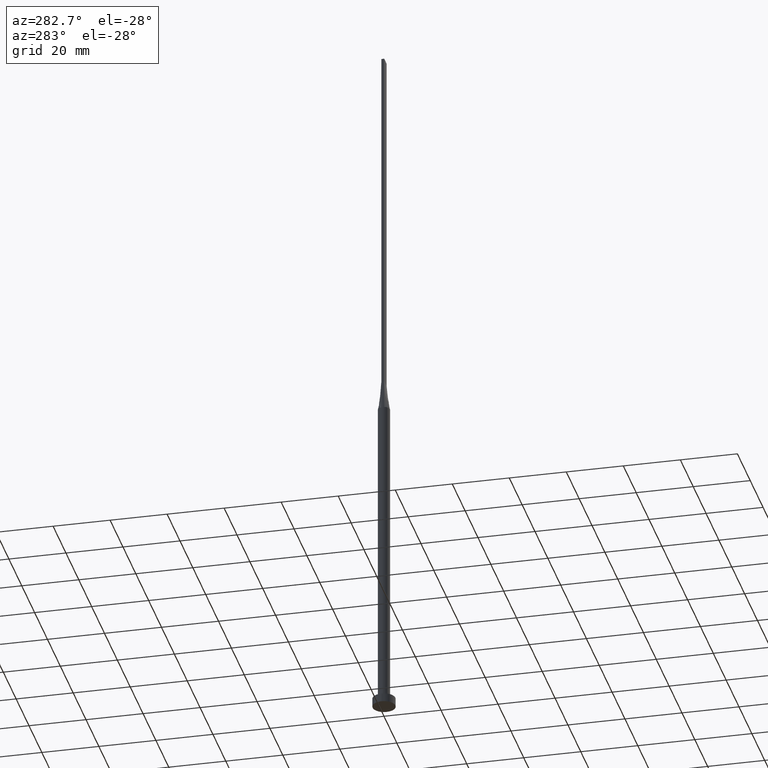
[diagram: clean part render]
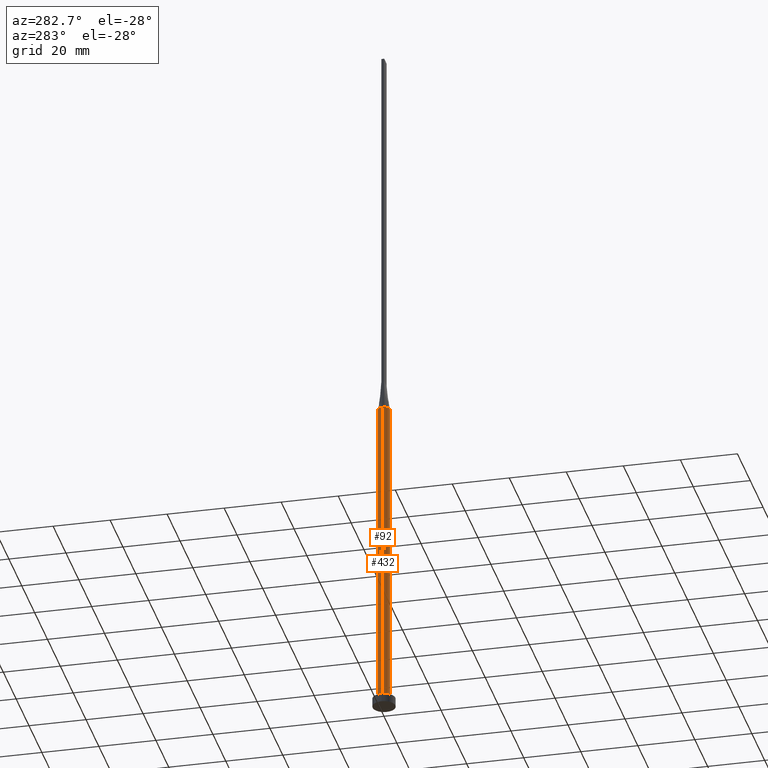
[diagram: same view with one multi-face feature highlighted, each face labeled with its STEP entity id]
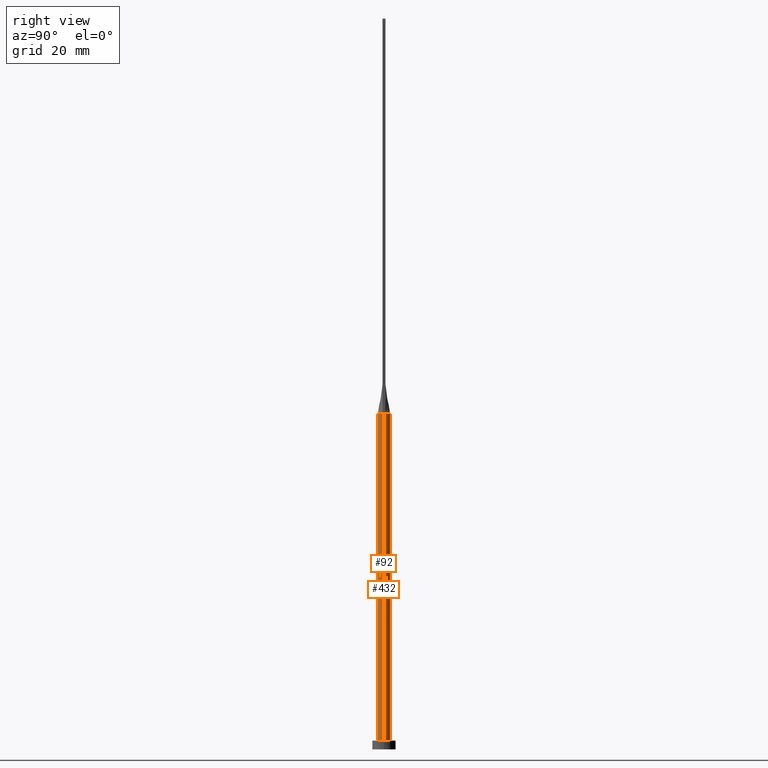
[diagram: same view with one multi-face feature highlighted, each face labeled with its STEP entity id]
A machine part, auxiliary view. The highlighted faces form ONE feature: a constant-radius fillet chain: 2 tangent blend faces with common blend radius 2.1 mm. The faces share edges in the B-rep.
A second angle (right view) of the same feature is appended — it is thin or edge-on in the first view.
Their STEP definitions:
[1] entity #432 (Cylinder):
#11 = CARTESIAN_POINT ( 'NONE',  ( -0.2698109971861040179, 2.100000000000000089, 115.0000000000000000 ) ) ;
#48 = CARTESIAN_POINT ( 'NONE',  ( -1.235326090059014836, 1.714395692508636326, 115.0000000000000142 ) ) ;
#52 = CARTESIAN_POINT ( 'NONE',  ( 1.719043754744862040, 1.223020672007445464, 115.0000000000000000 ) ) ;
#60 = CARTESIAN_POINT ( 'NONE',  ( 1.235326090059014614, 1.714395692508636770, 115.0000000000000711 ) ) ;
#66 = DIRECTION ( 'NONE',  ( 0.000000000000000000, 0.000000000000000000, 1.000000000000000000 ) ) ;
#69 = VERTEX_POINT ( 'NONE', #135 ) ;
#85 = AXIS2_PLACEMENT_3D ( 'NONE', #491, #97, #359 ) ;
#91 = CARTESIAN_POINT ( 'NONE',  ( 0.2698109971861041290, 2.100000000000000089, 115.0000000000000142 ) ) ;
#94 = CARTESIAN_POINT ( 'NONE',  ( -2.031019593402089818, 0.5344793603115657321, 115.0000000000000000 ) ) ;
#97 = DIRECTION ( 'NONE',  ( 0.000000000000000000, 0.000000000000000000, 1.000000000000000000 ) ) ;
#111 = ORIENTED_EDGE ( 'NONE', *, *, #289, .F. ) ;
#114 = CARTESIAN_POINT ( 'NONE',  ( 0.000000000000000000, 0.000000000000000000, 115.0000000000000000 ) ) ;
#115 = ORIENTED_EDGE ( 'NONE', *, *, #353, .T. ) ;
#118 = VECTOR ( 'NONE', #286, 1000.000000000000000 ) ;
#134 = CARTESIAN_POINT ( 'NONE',  ( 1.987786580065029174, 0.6981017315960605929, 115.0000000000000142 ) ) ;
#135 = CARTESIAN_POINT ( 'NONE',  ( -2.100000000000000089, -1.080980291041873360E-16, 115.0000000000000142 ) ) ;
#150 = DIRECTION ( 'NONE',  ( -0.000000000000000000, -0.000000000000000000, -1.000000000000000000 ) ) ;
#155 = LINE ( 'NONE', #516, #118 ) ;
#177 = CARTESIAN_POINT ( 'NONE',  ( 0.000000000000000000, 0.000000000000000000, 115.0000000000000000 ) ) ;
#185 = CARTESIAN_POINT ( 'NONE',  ( -1.021961681204346384, 1.852908961101259022, 115.0000000000000000 ) ) ;
#194 = AXIS2_PLACEMENT_3D ( 'NONE', #177, #263, #219 ) ;
#198 = CARTESIAN_POINT ( 'NONE',  ( -1.987786580065029174, 0.6981017315960602598, 115.0000000000000142 ) ) ;
#208 = EDGE_CURVE ( 'NONE', #340, #248, #327, .T. ) ;
#219 = DIRECTION ( 'NONE',  ( 1.000000000000000000, 0.000000000000000000, 0.000000000000000000 ) ) ;
#224 = AXIS2_PLACEMENT_3D ( 'NONE', #114, #150, #277 ) ;
#228 = CARTESIAN_POINT ( 'NONE',  ( 2.100000000000000089, 3.372022381799045987E-17, 115.0000000000000000 ) ) ;
#246 = VERTEX_POINT ( 'NONE', #368 ) ;
#248 = VERTEX_POINT ( 'NONE', #501 ) ;
#263 = DIRECTION ( 'NONE',  ( 0.000000000000000000, 0.000000000000000000, 1.000000000000000000 ) ) ;
#267 = CARTESIAN_POINT ( 'NONE',  ( 1.583604922800830428, 1.399063468093436624, 115.0000000000000000 ) ) ;
#274 = CARTESIAN_POINT ( 'NONE',  ( 2.100000000000000089, 2.571758278209441957E-16, 3.000000000000000000 ) ) ;
#277 = DIRECTION ( 'NONE',  ( -1.000000000000000000, 0.000000000000000000, 0.000000000000000000 ) ) ;
#284 = CARTESIAN_POINT ( 'NONE',  ( -1.920830191244604412, 0.8725264301372623876, 115.0000000000000284 ) ) ;
#286 = DIRECTION ( 'NONE',  ( -0.000000000000000000, -0.000000000000000000, -1.000000000000000000 ) ) ;
#289 = EDGE_CURVE ( 'NONE', #503, #69, #425, .T. ) ;
#303 = AXIS2_PLACEMENT_3D ( 'NONE', #505, #66, #487 ) ;
#304 = CARTESIAN_POINT ( 'NONE',  ( 1.920830191244603746, 0.8725264301372623876, 115.0000000000000142 ) ) ;
#313 = B_SPLINE_CURVE_WITH_KNOTS ( 'NONE', 3,
 ( #350, #134, #304, #52, #267, #60, #402, #484, #91, #11, #439, #185, #48, #395, #473, #284, #198, #422 ),
 .UNSPECIFIED., .F., .F.,
 ( 4, 2, 2, 2, 2, 2, 2, 2, 4 ),
 ( 0.000000000000000000, 0.1250000000000000278, 0.2500000000000000555, 0.3750000000000001110, 0.5000000000000000000, 0.6250000000000000000, 0.7500000000000000000, 0.8750000000000001110, 1.000000000000000000 ),
 .UNSPECIFIED. ) ;
#323 = EDGE_CURVE ( 'NONE', #427, #246, #324, .T. ) ;
#324 = CIRCLE ( 'NONE', #303, 2.100000000000000089 ) ;
#327 = CIRCLE ( 'NONE', #85, 2.100000000000000089 ) ;
#340 = VERTEX_POINT ( 'NONE', #228 ) ;
#348 = EDGE_CURVE ( 'NONE', #248, #503, #313, .T. ) ;
#349 = ORIENTED_EDGE ( 'NONE', *, *, #348, .F. ) ;
#350 = CARTESIAN_POINT ( 'NONE',  ( 2.030996101999494652, 0.5344731476277209126, 115.0000000000000000 ) ) ;
#353 = EDGE_CURVE ( 'NONE', #340, #427, #388, .T. ) ;
#359 = DIRECTION ( 'NONE',  ( 1.000000000000000000, 0.000000000000000000, 0.000000000000000000 ) ) ;
#368 = CARTESIAN_POINT ( 'NONE',  ( -2.100000000000000089, 0.000000000000000000, 3.000000000000000000 ) ) ;
#374 = EDGE_LOOP ( 'NONE', ( #514, #115, #564, #550, #111, #349 ) ) ;
#379 = CARTESIAN_POINT ( 'NONE',  ( 2.100000000000000089, 2.571758278209441957E-16, 115.0000000000000000 ) ) ;
#388 = LINE ( 'NONE', #379, #453 ) ;
#395 = CARTESIAN_POINT ( 'NONE',  ( -1.583604922800830428, 1.399063468093436402, 114.9999999999999858 ) ) ;
#402 = CARTESIAN_POINT ( 'NONE',  ( 1.021961681204346606, 1.852908961101259244, 115.0000000000000284 ) ) ;
#422 = CARTESIAN_POINT ( 'NONE',  ( -2.031019593402089818, 0.5344793603115657321, 115.0000000000000000 ) ) ;
#425 = CIRCLE ( 'NONE', #194, 2.100000000000000089 ) ;
#427 = VERTEX_POINT ( 'NONE', #274 ) ;
#432 = ADVANCED_FACE ( 'NONE', ( #498 ), #510, .T. ) ;
#439 = CARTESIAN_POINT ( 'NONE',  ( -0.5389299406762299016, 2.046272663899431965, 115.0000000000000142 ) ) ;
#453 = VECTOR ( 'NONE', #464, 1000.000000000000000 ) ;
#464 = DIRECTION ( 'NONE',  ( -0.000000000000000000, -0.000000000000000000, -1.000000000000000000 ) ) ;
#473 = CARTESIAN_POINT ( 'NONE',  ( -1.719043754744861596, 1.223020672007445242, 115.0000000000000142 ) ) ;
#484 = CARTESIAN_POINT ( 'NONE',  ( 0.5389299406762297906, 2.046272663899431077, 115.0000000000000284 ) ) ;
#487 = DIRECTION ( 'NONE',  ( 1.000000000000000000, 0.000000000000000000, 0.000000000000000000 ) ) ;
#491 = CARTESIAN_POINT ( 'NONE',  ( 0.000000000000000000, 0.000000000000000000, 115.0000000000000000 ) ) ;
#498 = FACE_OUTER_BOUND ( 'NONE', #374, .T. ) ;
#501 = CARTESIAN_POINT ( 'NONE',  ( 2.030996101999494652, 0.5344731476277209126, 115.0000000000000000 ) ) ;
#503 = VERTEX_POINT ( 'NONE', #94 ) ;
#505 = CARTESIAN_POINT ( 'NONE',  ( 0.000000000000000000, 0.000000000000000000, 3.000000000000000000 ) ) ;
#506 = EDGE_CURVE ( 'NONE', #69, #246, #155, .T. ) ;
#510 = CYLINDRICAL_SURFACE ( 'NONE', #224, 2.100000000000000089 ) ;
#514 = ORIENTED_EDGE ( 'NONE', *, *, #208, .F. ) ;
#516 = CARTESIAN_POINT ( 'NONE',  ( -2.100000000000000089, 0.000000000000000000, 115.0000000000000000 ) ) ;
#550 = ORIENTED_EDGE ( 'NONE', *, *, #506, .F. ) ;
#564 = ORIENTED_EDGE ( 'NONE', *, *, #323, .T. ) ;
[2] entity #92 (Cylinder):
#8 = DIRECTION ( 'NONE',  ( -1.000000000000000000, 0.000000000000000000, 0.000000000000000000 ) ) ;
#15 = DIRECTION ( 'NONE',  ( 1.000000000000000000, 0.000000000000000000, 0.000000000000000000 ) ) ;
#21 = ORIENTED_EDGE ( 'NONE', *, *, #353, .F. ) ;
#45 = DIRECTION ( 'NONE',  ( 0.000000000000000000, 0.000000000000000000, 1.000000000000000000 ) ) ;
#47 = ORIENTED_EDGE ( 'NONE', *, *, #53, .F. ) ;
#51 = ORIENTED_EDGE ( 'NONE', *, *, #513, .F. ) ;
#53 = EDGE_CURVE ( 'NONE', #69, #378, #364, .T. ) ;
#54 = AXIS2_PLACEMENT_3D ( 'NONE', #471, #165, #15 ) ;
#63 = AXIS2_PLACEMENT_3D ( 'NONE', #169, #346, #504 ) ;
#69 = VERTEX_POINT ( 'NONE', #135 ) ;
#87 = ORIENTED_EDGE ( 'NONE', *, *, #506, .T. ) ;
#92 = ADVANCED_FACE ( 'NONE', ( #144 ), #223, .T. ) ;
#100 = CARTESIAN_POINT ( 'NONE',  ( 2.031027953490633031, -0.5344816358097418396, 115.0000000000000000 ) ) ;
#118 = VECTOR ( 'NONE', #286, 1000.000000000000000 ) ;
#129 = AXIS2_PLACEMENT_3D ( 'NONE', #507, #454, #499 ) ;
#135 = CARTESIAN_POINT ( 'NONE',  ( -2.100000000000000089, -1.080980291041873360E-16, 115.0000000000000142 ) ) ;
#144 = FACE_OUTER_BOUND ( 'NONE', #287, .T. ) ;
#149 = CIRCLE ( 'NONE', #54, 2.100000000000000089 ) ;
#155 = LINE ( 'NONE', #516, #118 ) ;
#157 = VERTEX_POINT ( 'NONE', #100 ) ;
#159 = CIRCLE ( 'NONE', #129, 2.100000000000000089 ) ;
#165 = DIRECTION ( 'NONE',  ( 0.000000000000000000, 0.000000000000000000, 1.000000000000000000 ) ) ;
#169 = CARTESIAN_POINT ( 'NONE',  ( 0.000000000000000000, 0.000000000000000000, 115.0000000000000000 ) ) ;
#216 = DIRECTION ( 'NONE',  ( 1.000000000000000000, 0.000000000000000000, 0.000000000000000000 ) ) ;
#223 = CYLINDRICAL_SURFACE ( 'NONE', #476, 2.100000000000000089 ) ;
#228 = CARTESIAN_POINT ( 'NONE',  ( 2.100000000000000089, 3.372022381799045987E-17, 115.0000000000000000 ) ) ;
#242 = ORIENTED_EDGE ( 'NONE', *, *, #480, .F. ) ;
#246 = VERTEX_POINT ( 'NONE', #368 ) ;
#274 = CARTESIAN_POINT ( 'NONE',  ( 2.100000000000000089, 2.571758278209441957E-16, 3.000000000000000000 ) ) ;
#280 = ORIENTED_EDGE ( 'NONE', *, *, #581, .T. ) ;
#281 = CIRCLE ( 'NONE', #63, 2.100000000000000089 ) ;
#286 = DIRECTION ( 'NONE',  ( -0.000000000000000000, -0.000000000000000000, -1.000000000000000000 ) ) ;
#287 = EDGE_LOOP ( 'NONE', ( #21, #242, #51, #47, #87, #280 ) ) ;
#318 = CARTESIAN_POINT ( 'NONE',  ( 0.000000000000000000, 0.000000000000000000, 115.0000000000000000 ) ) ;
#340 = VERTEX_POINT ( 'NONE', #228 ) ;
#346 = DIRECTION ( 'NONE',  ( 0.000000000000000000, 0.000000000000000000, 1.000000000000000000 ) ) ;
#353 = EDGE_CURVE ( 'NONE', #340, #427, #388, .T. ) ;
#364 = CIRCLE ( 'NONE', #403, 2.100000000000000089 ) ;
#368 = CARTESIAN_POINT ( 'NONE',  ( -2.100000000000000089, 0.000000000000000000, 3.000000000000000000 ) ) ;
#378 = VERTEX_POINT ( 'NONE', #418 ) ;
#379 = CARTESIAN_POINT ( 'NONE',  ( 2.100000000000000089, 2.571758278209441957E-16, 115.0000000000000000 ) ) ;
#388 = LINE ( 'NONE', #379, #453 ) ;
#403 = AXIS2_PLACEMENT_3D ( 'NONE', #433, #45, #216 ) ;
#418 = CARTESIAN_POINT ( 'NONE',  ( -2.031004407172260162, -0.5344754071304557153, 115.0000000000000000 ) ) ;
#427 = VERTEX_POINT ( 'NONE', #274 ) ;
#433 = CARTESIAN_POINT ( 'NONE',  ( 0.000000000000000000, 0.000000000000000000, 115.0000000000000000 ) ) ;
#453 = VECTOR ( 'NONE', #464, 1000.000000000000000 ) ;
#454 = DIRECTION ( 'NONE',  ( 0.000000000000000000, 0.000000000000000000, 1.000000000000000000 ) ) ;
#464 = DIRECTION ( 'NONE',  ( -0.000000000000000000, -0.000000000000000000, -1.000000000000000000 ) ) ;
#471 = CARTESIAN_POINT ( 'NONE',  ( 0.000000000000000000, 0.000000000000000000, 115.0000000000000000 ) ) ;
#476 = AXIS2_PLACEMENT_3D ( 'NONE', #318, #541, #8 ) ;
#480 = EDGE_CURVE ( 'NONE', #157, #340, #281, .T. ) ;
#499 = DIRECTION ( 'NONE',  ( 1.000000000000000000, 0.000000000000000000, 0.000000000000000000 ) ) ;
#504 = DIRECTION ( 'NONE',  ( 1.000000000000000000, 4.440892098500626951E-15, 0.000000000000000000 ) ) ;
#506 = EDGE_CURVE ( 'NONE', #69, #246, #155, .T. ) ;
#507 = CARTESIAN_POINT ( 'NONE',  ( 0.000000000000000000, 0.000000000000000000, 3.000000000000000000 ) ) ;
#513 = EDGE_CURVE ( 'NONE', #378, #157, #149, .T. ) ;
#516 = CARTESIAN_POINT ( 'NONE',  ( -2.100000000000000089, 0.000000000000000000, 115.0000000000000000 ) ) ;
#541 = DIRECTION ( 'NONE',  ( -0.000000000000000000, -0.000000000000000000, -1.000000000000000000 ) ) ;
#581 = EDGE_CURVE ( 'NONE', #246, #427, #159, .T. ) ;